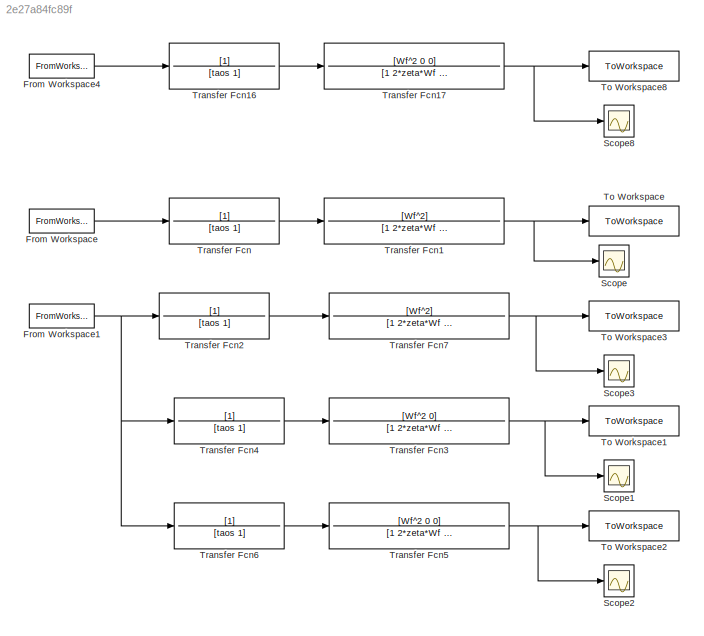
MODEL slx_2e27a84fc89f
KIND model
CONFIG AbsTol = auto
CONFIG EnableMultiTasking = off
CONFIG FixedStep = 0..005
CONFIG MaxStep = auto
CONFIG MinStep = auto
CONFIG RelTol = 1e-3
CONFIG SampleTimeConstraint = Unconstrained
CONFIG SolverName = VariableStepAuto
CONFIG StartTime = 0.0
CONFIG StopTime = (len-1)*dt
BLOCK [FromWorkspace] From Workspace
  OutDataTypeStr = double
  VariableName = MotorAcc
BLOCK [FromWorkspace] From Workspace1
  OutDataTypeStr = double
  VariableName = angle
BLOCK [FromWorkspace] From Workspace4
  OutDataTypeStr = double
  VariableName = pos
BLOCK [Scope] Scope
  Floating = off
  NumInputPorts = 1
  Ports = [1]
  ScopeSpecificationString = Simulink.scopes.TimeScopeBlockCfg('CurrentConfiguration', extmgr.ConfigurationSet(extmgr.Configuration('Core','General UI',true),extmgr.Configuration('Core','Source UI',true),extmgr.Configuration('Sources','WiredSimulink',true),extmgr.Configuration('Visuals','Time Domain',true,'SerializedDisplays',{struct('MinYLimReal','-0.61818','MaxYLimReal','0.42965','YLabelReal','','MinYLimMag','0.00000','MaxY...<+1358ch>
BLOCK [Scope] Scope1
  Floating = off
  NumInputPorts = 1
  Ports = [1]
  ScopeSpecificationString = Simulink.scopes.TimeScopeBlockCfg('CurrentConfiguration', extmgr.ConfigurationSet(extmgr.Configuration('Core','General UI',true),extmgr.Configuration('Core','Source UI',true),extmgr.Configuration('Sources','WiredSimulink',true,'DataLoggingVariableName','ScopeData1'),extmgr.Configuration('Visuals','Time Domain',true),extmgr.Configuration('Tools','Plot Navigation',true),extmgr.Configuration('Tools',...<+40ch>
BLOCK [Scope] Scope2
  Floating = off
  NumInputPorts = 1
  Ports = [1]
  ScopeSpecificationString = Simulink.scopes.TimeScopeBlockCfg('CurrentConfiguration', extmgr.ConfigurationSet(extmgr.Configuration('Core','General UI',true),extmgr.Configuration('Core','Source UI',true),extmgr.Configuration('Sources','WiredSimulink',true,'DataLoggingVariableName','ScopeData2'),extmgr.Configuration('Visuals','Time Domain',true),extmgr.Configuration('Tools','Plot Navigation',true),extmgr.Configuration('Tools',...<+40ch>
BLOCK [Scope] Scope3
  Floating = off
  NumInputPorts = 1
  Ports = [1]
  ScopeSpecificationString = Simulink.scopes.TimeScopeBlockCfg('CurrentConfiguration', extmgr.ConfigurationSet(extmgr.Configuration('Core','General UI',true),extmgr.Configuration('Core','Source UI',true),extmgr.Configuration('Sources','WiredSimulink',true,'DataLoggingVariableName','ScopeData3'),extmgr.Configuration('Visuals','Time Domain',true,'SerializedDisplays',{struct('MinYLimReal','-0.04446','MaxYLimReal','0.03707','YLab...<+1372ch>
BLOCK [Scope] Scope8
  Floating = off
  NumInputPorts = 1
  Ports = [1]
  ScopeSpecificationString = Simulink.scopes.TimeScopeBlockCfg('CurrentConfiguration', extmgr.ConfigurationSet(extmgr.Configuration('Core','General UI',true),extmgr.Configuration('Core','Source UI',true),extmgr.Configuration('Sources','WiredSimulink',true,'DataLoggingVariableName','ScopeData1'),extmgr.Configuration('Visuals','Time Domain',true,'SerializedDisplays',{struct('MinYLimReal','-5.26057','MaxYLimReal','15.61345','YLa...<+1428ch>
BLOCK [ToWorkspace] To Workspace
  FixptAsFi = on
  MaxDataPoints = inf
  Ports = [1]
  SampleTime = 0.005
  VariableName = Yt
BLOCK [ToWorkspace] To Workspace1
  FixptAsFi = on
  MaxDataPoints = inf
  Ports = [1]
  SampleTime = 0.005
  VariableName = x2
BLOCK [ToWorkspace] To Workspace2
  FixptAsFi = on
  MaxDataPoints = inf
  Ports = [1]
  SampleTime = 0.005
  VariableName = x3
BLOCK [ToWorkspace] To Workspace3
  FixptAsFi = on
  MaxDataPoints = inf
  Ports = [1]
  SampleTime = 0.005
  VariableName = x1
BLOCK [ToWorkspace] To Workspace8
  FixptAsFi = on
  MaxDataPoints = inf
  Ports = [1]
  SampleTime = 0.005
  VariableName = Yt1
BLOCK [TransferFcn] Transfer Fcn
  Denominator = [taos 1]
BLOCK [TransferFcn] Transfer Fcn1
  Denominator = [1 2*zeta*Wf Wf^2]
  Numerator = [Wf^2]
BLOCK [TransferFcn] Transfer Fcn16
  Denominator = [taos 1]
BLOCK [TransferFcn] Transfer Fcn17
  Denominator = [1 2*zeta*Wf Wf^2]
  Numerator = [Wf^2 0 0]
BLOCK [TransferFcn] Transfer Fcn2
  Denominator = [taos 1]
BLOCK [TransferFcn] Transfer Fcn3
  Denominator = [1 2*zeta*Wf Wf^2]
  Numerator = [Wf^2 0]
BLOCK [TransferFcn] Transfer Fcn4
  Denominator = [taos 1]
BLOCK [TransferFcn] Transfer Fcn5
  Denominator = [1 2*zeta*Wf Wf^2]
  Numerator = [Wf^2 0 0]
BLOCK [TransferFcn] Transfer Fcn6
  Denominator = [taos 1]
BLOCK [TransferFcn] Transfer Fcn7
  Denominator = [1 2*zeta*Wf Wf^2]
  Numerator = [Wf^2]
NET From Workspace1:1 -> Transfer Fcn2:1, Transfer Fcn4:1, Transfer Fcn6:1
LINE From Workspace4:1 -> Transfer Fcn16:1
LINE From Workspace:1 -> Transfer Fcn:1
LINE Transfer Fcn16:1 -> Transfer Fcn17:1
NET Transfer Fcn17:1 -> Scope8:1, To Workspace8:1
NET Transfer Fcn1:1 -> Scope:1, To Workspace:1
LINE Transfer Fcn2:1 -> Transfer Fcn7:1
NET Transfer Fcn3:1 -> Scope1:1, To Workspace1:1
LINE Transfer Fcn4:1 -> Transfer Fcn3:1
NET Transfer Fcn5:1 -> Scope2:1, To Workspace2:1
LINE Transfer Fcn6:1 -> Transfer Fcn5:1
NET Transfer Fcn7:1 -> Scope3:1, To Workspace3:1
LINE Transfer Fcn:1 -> Transfer Fcn1:1
note: NET lines group one-source signal fan-out (src -> all destinations, sorted); 1:1 wires keep LINE
